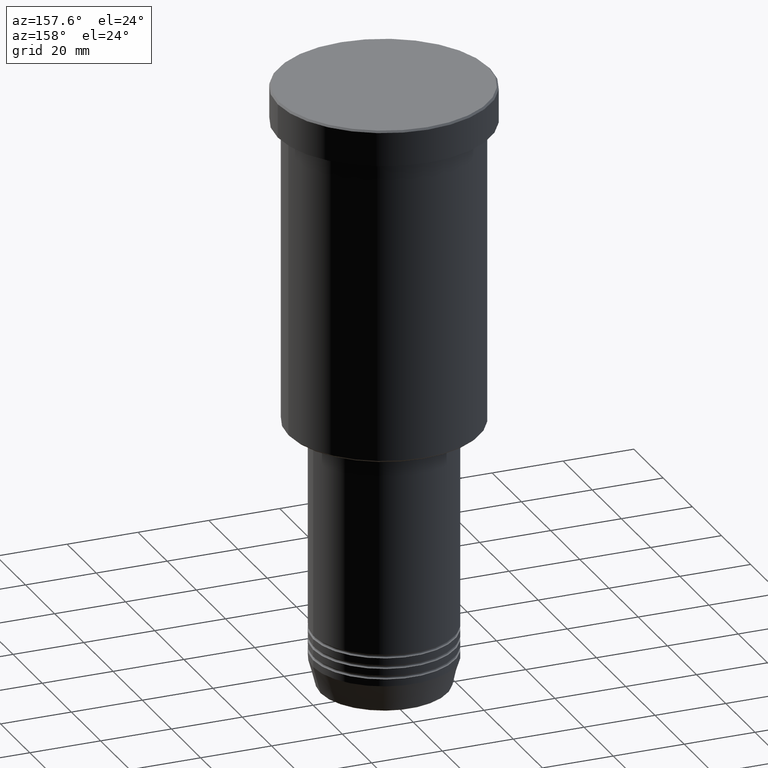
[diagram: clean part render]
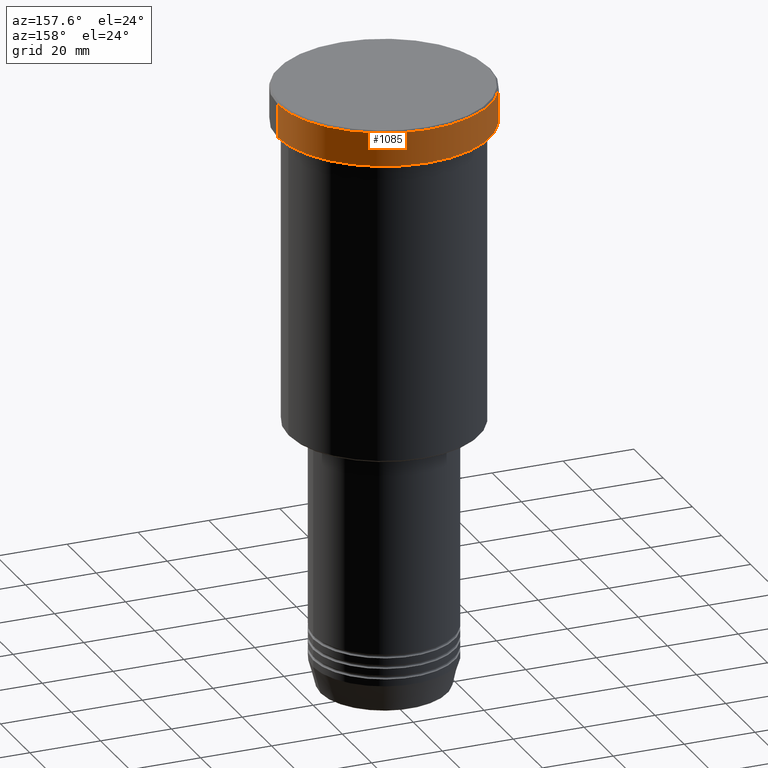
[diagram: same view with one face highlighted and labeled with its STEP entity id]
A machine part, auxiliary view. The second image highlights one B-rep face of the part: STEP entity #1085.
In plain terms, the highlighted cylindrical surface (partial cylindrical patch) has radius 30 mm, axis along (-0, -0, 1).
Its self-contained STEP definition (entity closure, byte-faithful):
#101 = VERTEX_POINT ( 'NONE', #320 ) ;
#154 = DIRECTION ( 'NONE',  ( 1.000000000000000000, 0.000000000000000000, 0.000000000000000000 ) ) ;
#159 = DIRECTION ( 'NONE',  ( -0.000000000000000000, -0.000000000000000000, 1.000000000000000000 ) ) ;
#165 = ORIENTED_EDGE ( 'NONE', *, *, #913, .F. ) ;
#202 = ORIENTED_EDGE ( 'NONE', *, *, #786, .T. ) ;
#249 = FACE_OUTER_BOUND ( 'NONE', #436, .T. ) ;
#304 = AXIS2_PLACEMENT_3D ( 'NONE', #352, #435, #803 ) ;
#320 = CARTESIAN_POINT ( 'NONE',  ( 30.00000000000000000, 0.000000000000000000, -9.999999999999992895 ) ) ;
#352 = CARTESIAN_POINT ( 'NONE',  ( 0.000000000000000000, 0.000000000000000000, -0.5000000000000350830 ) ) ;
#435 = DIRECTION ( 'NONE',  ( 0.000000000000000000, 0.000000000000000000, -1.000000000000000000 ) ) ;
#436 = EDGE_LOOP ( 'NONE', ( #900, #202, #674, #165 ) ) ;
#450 = CARTESIAN_POINT ( 'NONE',  ( -30.00000000000000000, 3.673940397442059178E-15, -0.5000000000000350830 ) ) ;
#460 = CIRCLE ( 'NONE', #611, 30.00000000000000000 ) ;
#486 = CARTESIAN_POINT ( 'NONE',  ( -30.00000000000000000, 3.673940397442059178E-15, 0.000000000000000000 ) ) ;
#570 = CIRCLE ( 'NONE', #304, 30.00000000000000000 ) ;
#596 = CARTESIAN_POINT ( 'NONE',  ( 30.00000000000000000, 0.000000000000000000, -0.5000000000000350830 ) ) ;
#611 = AXIS2_PLACEMENT_3D ( 'NONE', #973, #886, #710 ) ;
#625 = CARTESIAN_POINT ( 'NONE',  ( 0.000000000000000000, 0.000000000000000000, 0.000000000000000000 ) ) ;
#627 = VECTOR ( 'NONE', #640, 1000.000000000000000 ) ;
#640 = DIRECTION ( 'NONE',  ( -0.000000000000000000, -0.000000000000000000, 1.000000000000000000 ) ) ;
#674 = ORIENTED_EDGE ( 'NONE', *, *, #1114, .T. ) ;
#686 = CARTESIAN_POINT ( 'NONE',  ( 30.00000000000000000, 0.000000000000000000, 0.000000000000000000 ) ) ;
#710 = DIRECTION ( 'NONE',  ( 1.000000000000000000, 0.000000000000000000, 0.000000000000000000 ) ) ;
#776 = CARTESIAN_POINT ( 'NONE',  ( -30.00000000000000000, 3.673940397442059178E-15, -9.999999999999992895 ) ) ;
#786 = EDGE_CURVE ( 'NONE', #921, #1113, #991, .T. ) ;
#795 = AXIS2_PLACEMENT_3D ( 'NONE', #625, #159, #154 ) ;
#803 = DIRECTION ( 'NONE',  ( 1.000000000000000000, 0.000000000000000000, 0.000000000000000000 ) ) ;
#886 = DIRECTION ( 'NONE',  ( -0.000000000000000000, -0.000000000000000000, 1.000000000000000000 ) ) ;
#893 = VECTOR ( 'NONE', #1049, 1000.000000000000000 ) ;
#900 = ORIENTED_EDGE ( 'NONE', *, *, #1131, .T. ) ;
#913 = EDGE_CURVE ( 'NONE', #101, #1017, #943, .T. ) ;
#921 = VERTEX_POINT ( 'NONE', #776 ) ;
#943 = LINE ( 'NONE', #686, #893 ) ;
#969 = CYLINDRICAL_SURFACE ( 'NONE', #795, 30.00000000000000000 ) ;
#973 = CARTESIAN_POINT ( 'NONE',  ( 0.000000000000000000, 0.000000000000000000, -9.999999999999992895 ) ) ;
#991 = LINE ( 'NONE', #486, #627 ) ;
#1017 = VERTEX_POINT ( 'NONE', #596 ) ;
#1049 = DIRECTION ( 'NONE',  ( -0.000000000000000000, -0.000000000000000000, 1.000000000000000000 ) ) ;
#1085 = ADVANCED_FACE ( 'NONE', ( #249 ), #969, .T. ) ;
#1113 = VERTEX_POINT ( 'NONE', #450 ) ;
#1114 = EDGE_CURVE ( 'NONE', #1113, #1017, #570, .T. ) ;
#1131 = EDGE_CURVE ( 'NONE', #101, #921, #460, .T. ) ;